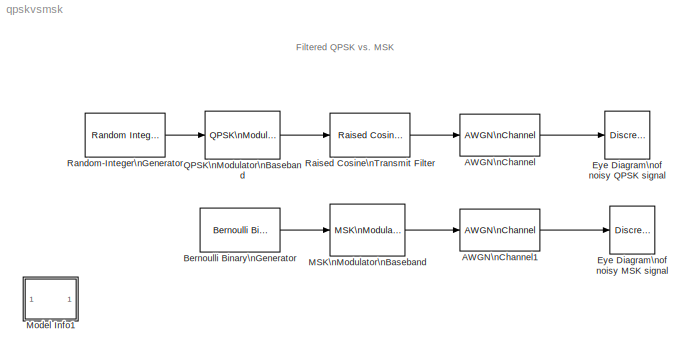
MODEL qpskvsmsk
KIND model
BLOCK [Reference] AWGN\nChannel  REF=commchan2/AWGN\nChannel
  EbNodB = 10
  EsNodB = 10
  Ports = [1, 1]
  Ps = 1
  SNRdB = 30
  ShowPortLabels = on
  SourceBlock = commchan2/AWGN\nChannel
  SourceType = AWGN Channel
  Tsym = 1
  bitsPerSym = 1
  noiseMode = Signal to noise ratio  (SNR)
  seed = 1237
  variance = 1
BLOCK [Reference] AWGN\nChannel1  REF=commchan2/AWGN\nChannel
  EbNodB = 10
  EsNodB = 10
  Ports = [1, 1]
  Ps = 1
  SNRdB = 30
  ShowPortLabels = on
  SourceBlock = commchan2/AWGN\nChannel
  SourceType = AWGN Channel
  Tsym = 1
  bitsPerSym = 1
  noiseMode = Signal to noise ratio  (SNR)
  seed = 1237
  variance = 1
BLOCK [Reference] Bernoulli Binary\nGenerator  REF=commrandsrc2/Bernoulli Binary\nGenerator
  P = 0.5
  Ports = [0, 1]
  ShowPortLabels = on
  SourceBlock = commrandsrc2/Bernoulli Binary\nGenerator
  SourceType = Bernoulli Binary Generator
  Ts = 0.5
  frameBased = off
  orient = off
  sampPerFrame = 1
  seed = 61
BLOCK [Reference] Eye Diagram\nof noisy MSK signal  REF=commsink2/Discrete-Time\nEye Diagram\nScope
  AxisGrid = on
  FigPos = [512 225 358 412]
  FrameNumber = off
  LineColors = m
  LineStyles = -
  Ports = [1]
  ShowPortLabels = on
  SourceBlock = commsink2/Discrete-Time\nEye Diagram\nScope
  SourceType = Discrete-Time Eye Diagram Scope
  Tag = EyeDiagram
  block_type_ = eye
  dispDiagram = In-phase and Quadrature
  dupPoints = on
  fading = on
  figTitle = Eye Diagram
  inphaseLabel = In-phase Amplitude
  numLinesMax = 8
  numNewFrames = 10
  numTraces = 40
  offsetEye = 4
  openScopeAtSimStart = on
  quadratureLabel = Quadrature Amplitude
  render = on
  sampPerSymb = 8
  symbPerTrace = 4
  yMax = 1.5
  yMin = -1.5
BLOCK [Reference] Eye Diagram\nof noisy QPSK signal  REF=commsink2/Discrete-Time\nEye Diagram\nScope
  AxisGrid = on
  FigPos = [51 225 358 412]
  FrameNumber = off
  LineColors = b
  LineStyles = -
  Ports = [1]
  ShowPortLabels = on
  SourceBlock = commsink2/Discrete-Time\nEye Diagram\nScope
  SourceType = Discrete-Time Eye Diagram Scope
  Tag = EyeDiagram
  block_type_ = eye
  dispDiagram = In-phase and Quadrature
  dupPoints = on
  fading = on
  figTitle = Eye Diagram
  inphaseLabel = In-phase Amplitude
  numLinesMax = 8
  numNewFrames = 10
  numTraces = 40
  offsetEye = 0
  openScopeAtSimStart = on
  quadratureLabel = Quadrature Amplitude
  render = on
  sampPerSymb = 8
  symbPerTrace = 2
  yMax = 1.5
  yMin = -1.5
BLOCK [Reference] MSK\nModulator\nBaseband  REF=commdigbbndcpm2/MSK\nModulator\nBaseband
  Ports = [1, 1]
  ShowPortLabels = on
  SourceBlock = commdigbbndcpm2/MSK\nModulator\nBaseband
  SourceType = MSK Modulator Baseband
  inputType = Bit
  phaseOffset = 0
  samplesPerSymbol = 8
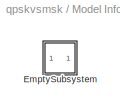
BLOCK [SubSystem] Model Info1
  CopyFcn = slcm CopyBlock;
  DeleteFcn = slcm Cancel;
  EnableExecutionContextPropagation = on
  InitFcn = slcm('UpdateAllCMBlocksInThisModelInit')
  LoadFcn = slcm LoadBlock;
  MaskCallbackString = ||||||||||||||||||||||||||||||
  MaskDescription = This block allows revision control information to be displayed within the model.
  MaskDisplay = text(str2num(LeftAlignmentValue), 0.5, MaskDisplayString, 'HorizontalAlignment', HorizontalTextAlignment)\n
  MaskEnableString = on,on,on,on,on,on,on,on,on,on,on,on,on,on,on,on,on,on,on,on,on,on,on,on,on,on,on,on,on,on,on
  MaskIconFrame = on
  MaskIconOpaque = on
  MaskIconRotate = none
  MaskIconUnits = normalized
  MaskPromptString = InitialSaveTempField|InitialBlockCM|BlockCM|Frame|SaveTempField|DisplayStringWithTags|MaskDisplayString|HorizontalTextAlignment|LeftAlignmentValue|SourceBlockDiagram|TagMaxNumber|CMTag1|CMTag2|CMTag3|CMTag4|CMTag5|CMTag6|CMTag7|CMTag8|CMTag9|CMTag10|CMTag11|CMTag12|CMTag13|CMTag14|CMTag15|CMTag16|CMTag17|CMTag18|CMTag19|CMTag20
  MaskSelfModifiable = on
  MaskStyleString = edit,edit,edit,edit,edit,edit,edit,edit,edit,edit,edit,edit,edit,edit,edit,edit,edit,edit,edit,edit,edit,edit,edit,edit,edit,edit,edit,edit,edit,edit,edit
  MaskTabNameString = ,,,,,,,,,,,,,,,,,,,,,,,,,,,,,,
  MaskToolTipString = on,on,on,on,on,on,on,on,on,on,on,on,on,on,on,on,on,on,on,on,on,on,on,on,on,on,on,on,on,on,on
  MaskTunableValueString = on,on,on,on,on,on,on,on,on,on,on,on,on,on,on,on,on,on,on,on,on,on,on,on,on,on,on,on,on,on,on
  MaskType = CMBlock
  MaskValueString = |None|None|on||Info|Info|Center|0.5|qpskvsmsk|20||||||||||||||||||||
  MaskVarAliasString = ,,,,,,,,,,,,,,,,,,,,,,,,,,,,,,
  MaskVariables = InitialSaveTempField=&1;InitialBlockCM=&2;BlockCM=&3;Frame=&4;SaveTempField=&5;DisplayStringWithTags=&6;MaskDisplayString=&7;HorizontalTextAlignment=&8;LeftAlignmentValue=&9;SourceBlockDiagram=&10;TagMaxNumber=@11;CMTag1=&12;CMTag2=&13;CMTag3=&14;CMTag4=&15;CMTag5=&16;CMTag6=&17;CMTag7=&18;CMTag8=&19;CMTag9=&20;CMTag10=&21;CMTag11=&22;CMTag12=&23;CMTag13=&24;CMTag14=&25;CMTag15=&26;CMTag16=&27;CMT...<+45ch>
  MaskVisibilityString = off,off,off,off,off,off,off,off,off,off,off,off,off,off,off,off,off,off,off,off,off,off,off,off,off,off,off,off,off,off,off
  MinAlgLoopOccurrences = off
  NameChangeFcn = slcm Rename;
  OpenFcn = commdemohelp;
  Ports = []
  PostSaveFcn = slcm('UpdateAllCMBlocksInThisModel')
  TreatAsAtomicUnit = off
BLOCK [SubSystem] Model Info1/EmptySubsystem
  EnableExecutionContextPropagation = on
  MinAlgLoopOccurrences = off
  Ports = []
  TreatAsAtomicUnit = off
BLOCK [Reference] QPSK\nModulator\nBaseband  REF=commdigbbndpm2/QPSK\nModulator\nBaseband
  Enc = Binary
  InType = Integer
  Ph = pi/4
  Ports = [1, 1]
  ShowPortLabels = on
  SourceBlock = commdigbbndpm2/QPSK\nModulator\nBaseband
  SourceType = QPSK Modulator Baseband
  numSamp = 1
BLOCK [Reference] Raised Cosine\nTransmit Filter  REF=commfilt2/Raised Cosine\nTransmit Filter
  D = 1
  N = 8
  Ports = [1, 1]
  R = 0.3
  ShowPortLabels = on
  SourceBlock = commfilt2/Raised Cosine\nTransmit Filter
  SourceType = Raised Cosine Transmit Filter
  checkCoeff = off
  checkGain = Normalized
  filtType = Normal
  filterGain = 1
  launchFVT = off
  sampMode = Sample-based
  variableName = rcTxFilt
BLOCK [Reference] Random-Integer\nGenerator  REF=commrandsrc2/Random Integer\nGenerator
  Ports = [0, 1]
  ShowPortLabels = on
  SourceBlock = commrandsrc2/Random Integer\nGenerator
  SourceType = Random Integer Generator
  Ts = 1
  frameBased = off
  mul = 4
  orient = off
  sampPerFrame = 50
  seed = [12345]
ANNOTATION (root): Filtered QPSK vs. MSK
LINE AWGN\nChannel1:1 -> Eye Diagram\nof noisy MSK signal:1
LINE AWGN\nChannel:1 -> Eye Diagram\nof noisy QPSK signal:1
LINE Bernoulli Binary\nGenerator:1 -> MSK\nModulator\nBaseband:1
LINE MSK\nModulator\nBaseband:1 -> AWGN\nChannel1:1
LINE QPSK\nModulator\nBaseband:1 -> Raised Cosine\nTransmit Filter:1
LINE Raised Cosine\nTransmit Filter:1 -> AWGN\nChannel:1
LINE Random-Integer\nGenerator:1 -> QPSK\nModulator\nBaseband:1
